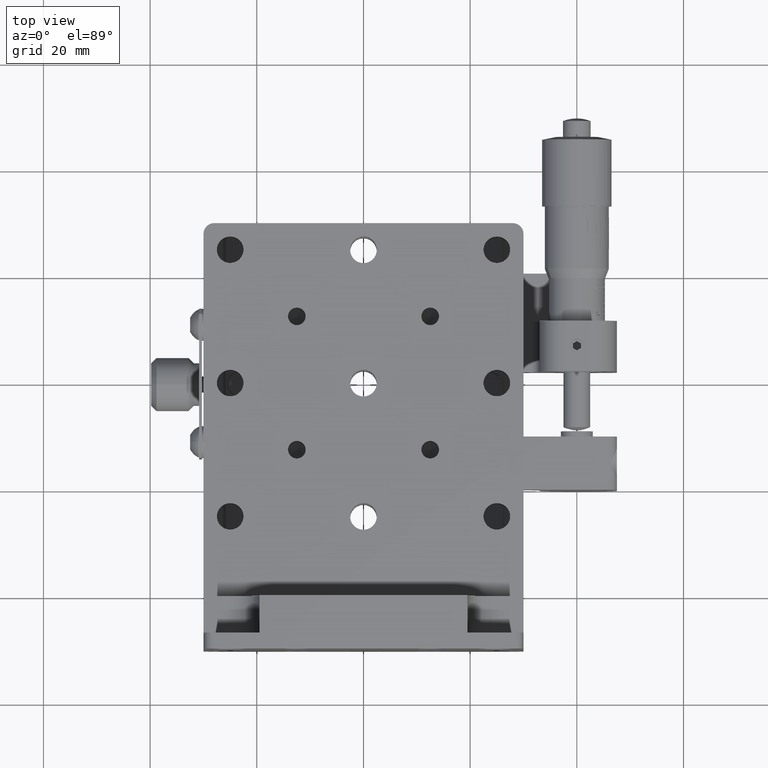
[diagram: clean part render]
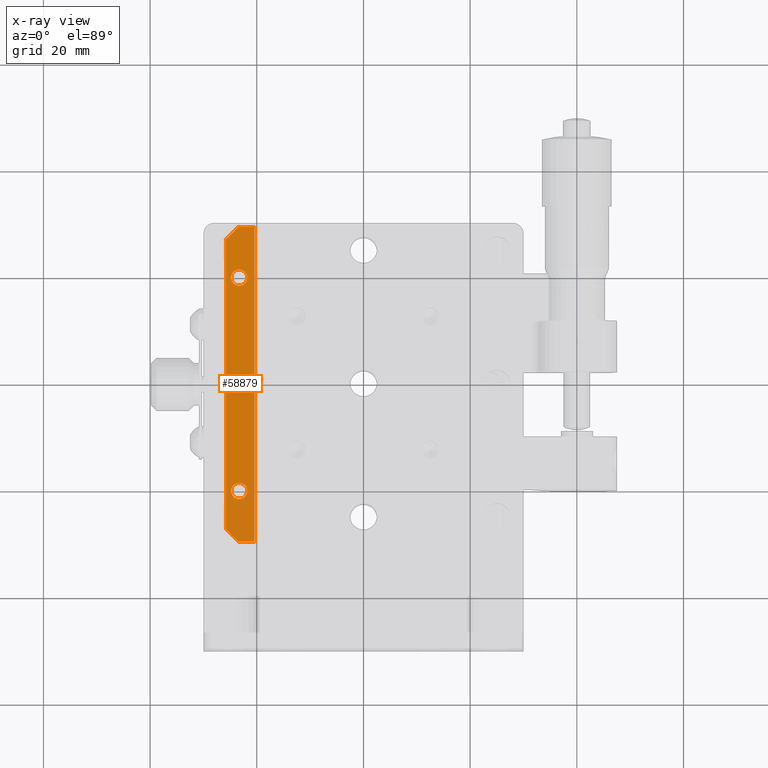
[diagram: x-ray — body ghosted, one internal face saturated and labeled with its STEP entity id]
A machine part, top view, then the same camera in x-ray: the body is ghosted and one INTERNAL B-rep face — a face not visible from any outside direction — is saturated and labeled: STEP entity #58879.
In plain terms, the highlighted planar face has unit normal (0, -0, 1).
Its self-contained STEP definition (entity closure, byte-faithful):
#49 = DIRECTION ( 'NONE',  ( 3.556801925181475300E-015, -6.712601931721432600E-016, 1.000000000000000000 ) ) ;
#588 = VERTEX_POINT ( 'NONE', #59232 ) ;
#593 = EDGE_LOOP ( 'NONE', ( #7009, #34335 ) ) ;
#2090 = ORIENTED_EDGE ( 'NONE', *, *, #25412, .T. ) ;
#2210 = EDGE_CURVE ( 'NONE', #10219, #48071, #20043, .T. ) ;
#2543 = ORIENTED_EDGE ( 'NONE', *, *, #2210, .T. ) ;
#3158 = CARTESIAN_POINT ( 'NONE',  ( -23.30000000000014300, 40.00000000000002800, -9.500000000055964100 ) ) ;
#3239 = FACE_BOUND ( 'NONE', #35842, .T. ) ;
#3500 = EDGE_LOOP ( 'NONE', ( #23979, #34752 ) ) ;
#3999 = CARTESIAN_POINT ( 'NONE',  ( -25.80000000000012200, 67.15147186257611600, -9.500000000055965900 ) ) ;
#4527 = CARTESIAN_POINT ( 'NONE',  ( -19.90000000000009800, 69.49999999999997200, -9.500000000055973000 ) ) ;
#4726 = DIRECTION ( 'NONE',  ( 3.556801925181475300E-015, -6.712601931721432600E-016, 1.000000000000000000 ) ) ;
#5576 = LINE ( 'NONE', #34797, #55337 ) ;
#6017 = LINE ( 'NONE', #4527, #15563 ) ;
#6254 = CARTESIAN_POINT ( 'NONE',  ( -19.90000000000009800, 69.99999999999998600, -9.500000000055981900 ) ) ;
#6671 = CARTESIAN_POINT ( 'NONE',  ( -23.45147186257630200, 10.50000000000014700, -9.500000000055948100 ) ) ;
#7009 = ORIENTED_EDGE ( 'NONE', *, *, #22817, .T. ) ;
#7902 = DIRECTION ( 'NONE',  ( 3.556801925181475300E-015, -6.712601931721432600E-016, 1.000000000000000000 ) ) ;
#8673 = VERTEX_POINT ( 'NONE', #3999 ) ;
#8945 = CIRCLE ( 'NONE', #14264, 1.500000000000001300 ) ;
#9465 = CARTESIAN_POINT ( 'NONE',  ( -20.40000000000009800, 69.49999999999997200, -9.500000000055974800 ) ) ;
#9509 = CARTESIAN_POINT ( 'NONE',  ( -23.30000000000013900, 20.00000000000005000, -9.500000000055946400 ) ) ;
#10219 = VERTEX_POINT ( 'NONE', #9465 ) ;
#12915 = EDGE_CURVE ( 'NONE', #52702, #8673, #48332, .T. ) ;
#13359 = CARTESIAN_POINT ( 'NONE',  ( -23.30000000000011800, 58.49999999999997200, -9.500000000055962300 ) ) ;
#13863 = VECTOR ( 'NONE', #47848, 1000.000000000000000 ) ;
#14264 = AXIS2_PLACEMENT_3D ( 'NONE', #3158, #7902, #51196 ) ;
#15144 = EDGE_CURVE ( 'NONE', #48071, #55720, #5576, .T. ) ;
#15563 = VECTOR ( 'NONE', #56654, 1000.000000000000000 ) ;
#15846 = DIRECTION ( 'NONE',  ( 3.556801925181475300E-015, -6.712601931721432600E-016, 1.000000000000000000 ) ) ;
#17137 = LINE ( 'NONE', #23893, #28089 ) ;
#17204 = VERTEX_POINT ( 'NONE', #17886 ) ;
#17886 = CARTESIAN_POINT ( 'NONE',  ( -23.30000000000014300, 41.50000000000002800, -9.500000000055964100 ) ) ;
#18982 = ORIENTED_EDGE ( 'NONE', *, *, #37594, .T. ) ;
#20000 = PLANE ( 'NONE',  #41279 ) ;
#20043 = LINE ( 'NONE', #43191, #43428 ) ;
#20183 = DIRECTION ( 'NONE',  ( 0.0000000000000000000, -1.000000000000000000, 0.0000000000000000000 ) ) ;
#20531 = DIRECTION ( 'NONE',  ( -1.054711873391386200E-015, -1.000000000000000000, 4.770964580414528700E-016 ) ) ;
#20932 = FACE_OUTER_BOUND ( 'NONE', #35613, .T. ) ;
#22385 = CIRCLE ( 'NONE', #51953, 1.500000000000001300 ) ;
#22817 = EDGE_CURVE ( 'NONE', #588, #27371, #57525, .T. ) ;
#23893 = CARTESIAN_POINT ( 'NONE',  ( -25.37573593128823600, 12.42426406871208200, -9.500000000055941000 ) ) ;
#23979 = ORIENTED_EDGE ( 'NONE', *, *, #45290, .T. ) ;
#24261 = CARTESIAN_POINT ( 'NONE',  ( -23.30000000000011800, 59.99999999999997200, -9.500000000055960600 ) ) ;
#25412 = EDGE_CURVE ( 'NONE', #50295, #33206, #31754, .T. ) ;
#26445 = CARTESIAN_POINT ( 'NONE',  ( -23.87573593128819000, 69.07573593128805100, -9.500000000055974800 ) ) ;
#27371 = VERTEX_POINT ( 'NONE', #47567 ) ;
#28089 = VECTOR ( 'NONE', #52025, 999.9999999999998900 ) ;
#28938 = DIRECTION ( 'NONE',  ( 3.556801925181475300E-015, -6.712601931721432600E-016, 1.000000000000000000 ) ) ;
#29346 = CARTESIAN_POINT ( 'NONE',  ( -23.30000000000011800, 59.99999999999997200, -9.500000000055960600 ) ) ;
#30769 = AXIS2_PLACEMENT_3D ( 'NONE', #24261, #15846, #52797 ) ;
#30954 = CIRCLE ( 'NONE', #35268, 1.500000000000001300 ) ;
#31011 = DIRECTION ( 'NONE',  ( 0.0000000000000000000, 1.000000000000000000, 0.0000000000000000000 ) ) ;
#31754 = CIRCLE ( 'NONE', #30769, 1.500000000000001300 ) ;
#31901 = EDGE_CURVE ( 'NONE', #55720, #52702, #17137, .T. ) ;
#32582 = CIRCLE ( 'NONE', #45747, 1.500000000000001300 ) ;
#33206 = VERTEX_POINT ( 'NONE', #13359 ) ;
#33336 = EDGE_CURVE ( 'NONE', #35377, #10219, #6017, .T. ) ;
#33359 = VERTEX_POINT ( 'NONE', #37469 ) ;
#33367 = DIRECTION ( 'NONE',  ( 0.0000000000000000000, 1.000000000000000000, 0.0000000000000000000 ) ) ;
#34335 = ORIENTED_EDGE ( 'NONE', *, *, #42638, .T. ) ;
#34752 = ORIENTED_EDGE ( 'NONE', *, *, #60644, .T. ) ;
#34797 = CARTESIAN_POINT ( 'NONE',  ( -19.90000000000016600, 10.50000000000007800, -9.500000000055960600 ) ) ;
#34845 = ORIENTED_EDGE ( 'NONE', *, *, #42752, .T. ) ;
#35268 = AXIS2_PLACEMENT_3D ( 'NONE', #35523, #40240, #31011 ) ;
#35298 = VECTOR ( 'NONE', #53782, 1000.000000000000100 ) ;
#35377 = VERTEX_POINT ( 'NONE', #51710 ) ;
#35393 = DIRECTION ( 'NONE',  ( -1.000000000000000000, -1.276756478316418100E-015, 2.541495110975004100E-015 ) ) ;
#35523 = CARTESIAN_POINT ( 'NONE',  ( -23.30000000000014300, 40.00000000000002800, -9.500000000055964100 ) ) ;
#35613 = EDGE_LOOP ( 'NONE', ( #37244, #40012, #37822, #18982, #43227, #2543 ) ) ;
#35842 = EDGE_LOOP ( 'NONE', ( #2090, #34845 ) ) ;
#37244 = ORIENTED_EDGE ( 'NONE', *, *, #15144, .T. ) ;
#37469 = CARTESIAN_POINT ( 'NONE',  ( -23.30000000000013900, 38.50000000000002800, -9.500000000055965900 ) ) ;
#37594 = EDGE_CURVE ( 'NONE', #8673, #35377, #55731, .T. ) ;
#37822 = ORIENTED_EDGE ( 'NONE', *, *, #12915, .T. ) ;
#39140 = FACE_BOUND ( 'NONE', #593, .T. ) ;
#40012 = ORIENTED_EDGE ( 'NONE', *, *, #31901, .T. ) ;
#40240 = DIRECTION ( 'NONE',  ( 3.556801925181475300E-015, -6.712601931721432600E-016, 1.000000000000000000 ) ) ;
#40621 = FACE_BOUND ( 'NONE', #3500, .T. ) ;
#41017 = CARTESIAN_POINT ( 'NONE',  ( -25.80000000000016400, 12.84852813742400100, -9.500000000055939300 ) ) ;
#41279 = AXIS2_PLACEMENT_3D ( 'NONE', #6254, #58354, #44729 ) ;
#42638 = EDGE_CURVE ( 'NONE', #27371, #588, #32582, .T. ) ;
#42752 = EDGE_CURVE ( 'NONE', #33206, #50295, #22385, .T. ) ;
#43191 = CARTESIAN_POINT ( 'NONE',  ( -20.40000000000009800, 69.99999999999998600, -9.500000000055971200 ) ) ;
#43227 = ORIENTED_EDGE ( 'NONE', *, *, #33336, .T. ) ;
#43428 = VECTOR ( 'NONE', #20531, 1000.000000000000000 ) ;
#44729 = DIRECTION ( 'NONE',  ( 1.000000000000000000, 1.276756478316418100E-015, -2.541495110975004100E-015 ) ) ;
#45290 = EDGE_CURVE ( 'NONE', #17204, #33359, #30954, .T. ) ;
#45747 = AXIS2_PLACEMENT_3D ( 'NONE', #9509, #49, #56129 ) ;
#47567 = CARTESIAN_POINT ( 'NONE',  ( -23.30000000000013900, 18.50000000000004600, -9.500000000055948100 ) ) ;
#47848 = DIRECTION ( 'NONE',  ( 1.054711873391386200E-015, 1.000000000000000000, -4.770964580414528700E-016 ) ) ;
#48071 = VERTEX_POINT ( 'NONE', #54460 ) ;
#48332 = LINE ( 'NONE', #57040, #13863 ) ;
#50295 = VERTEX_POINT ( 'NONE', #52482 ) ;
#51196 = DIRECTION ( 'NONE',  ( 0.0000000000000000000, 1.000000000000000000, 0.0000000000000000000 ) ) ;
#51710 = CARTESIAN_POINT ( 'NONE',  ( -23.45147186257626600, 69.49999999999997200, -9.500000000055971200 ) ) ;
#51935 = CARTESIAN_POINT ( 'NONE',  ( -23.30000000000013900, 20.00000000000005000, -9.500000000055946400 ) ) ;
#51953 = AXIS2_PLACEMENT_3D ( 'NONE', #29346, #28938, #20183 ) ;
#52025 = DIRECTION ( 'NONE',  ( -0.7071067811865489100, 0.7071067811865462400, 1.459750286561693600E-015 ) ) ;
#52482 = CARTESIAN_POINT ( 'NONE',  ( -23.30000000000011100, 61.49999999999997200, -9.500000000055958800 ) ) ;
#52702 = VERTEX_POINT ( 'NONE', #41017 ) ;
#52797 = DIRECTION ( 'NONE',  ( 0.0000000000000000000, -1.000000000000000000, 0.0000000000000000000 ) ) ;
#53782 = DIRECTION ( 'NONE',  ( 0.7071067811865460200, 0.7071067811865490200, -2.134466568084071800E-015 ) ) ;
#54460 = CARTESIAN_POINT ( 'NONE',  ( -20.40000000000016600, 10.50000000000007800, -9.500000000055964100 ) ) ;
#55240 = AXIS2_PLACEMENT_3D ( 'NONE', #51935, #4726, #33367 ) ;
#55337 = VECTOR ( 'NONE', #35393, 1000.000000000000000 ) ;
#55720 = VERTEX_POINT ( 'NONE', #6671 ) ;
#55731 = LINE ( 'NONE', #26445, #35298 ) ;
#56129 = DIRECTION ( 'NONE',  ( 0.0000000000000000000, 1.000000000000000000, 0.0000000000000000000 ) ) ;
#56654 = DIRECTION ( 'NONE',  ( 1.000000000000000000, 1.276756478316418100E-015, -2.541495110975004100E-015 ) ) ;
#57040 = CARTESIAN_POINT ( 'NONE',  ( -25.80000000000012200, 69.99999999999998600, -9.500000000055974800 ) ) ;
#57525 = CIRCLE ( 'NONE', #55240, 1.500000000000001300 ) ;
#58354 = DIRECTION ( 'NONE',  ( 2.541495110975004900E-015, -6.712601931721406000E-016, 1.000000000000000000 ) ) ;
#58879 = ADVANCED_FACE ( 'NONE', ( #3239, #40621, #39140, #20932 ), #20000, .F. ) ;
#59232 = CARTESIAN_POINT ( 'NONE',  ( -23.30000000000013900, 21.50000000000005000, -9.500000000055946400 ) ) ;
#60644 = EDGE_CURVE ( 'NONE', #33359, #17204, #8945, .T. ) ;